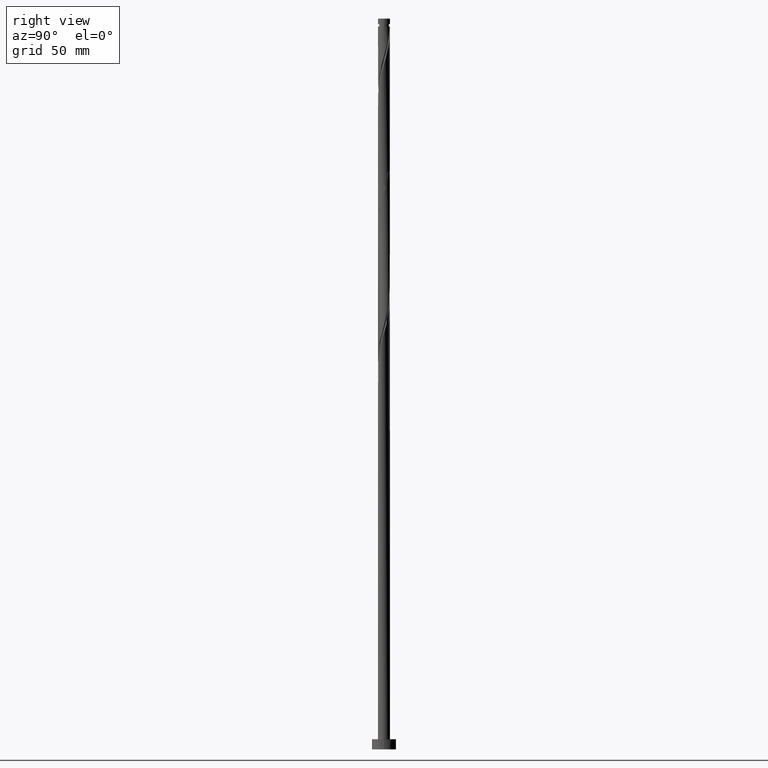
[diagram: clean part render]
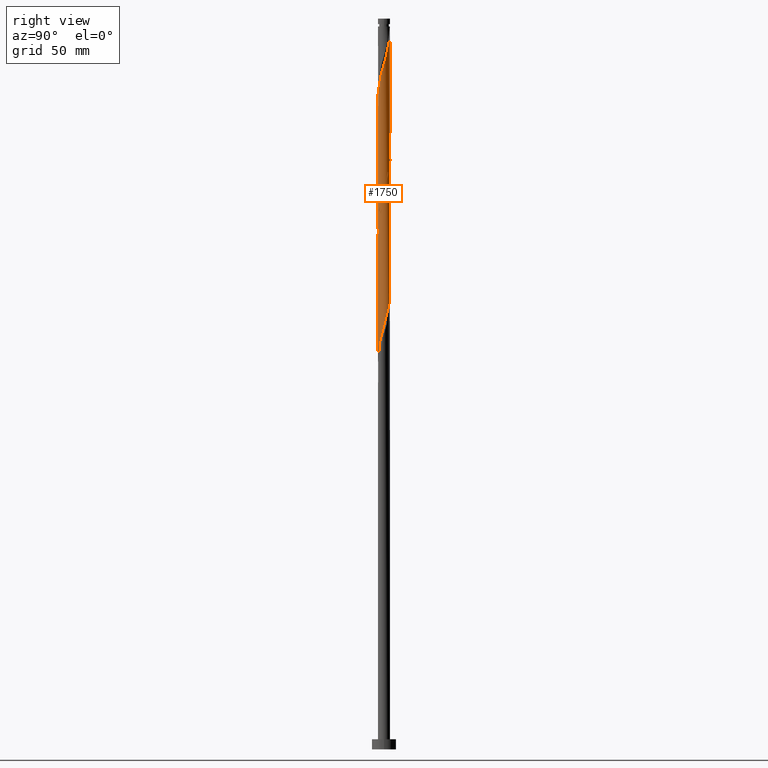
[diagram: same view with one face highlighted and labeled with its STEP entity id]
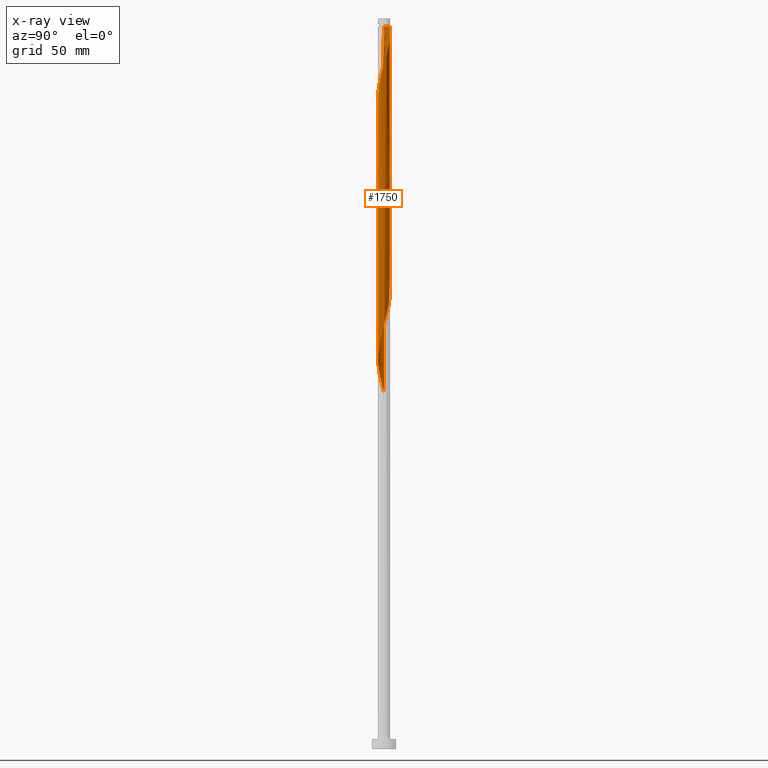
[diagram: x-ray of the same camera — body ghosted, the highlighted face saturated]
A machine part, right view. The second image highlights one B-rep face of the part: STEP entity #1750.
The next image is the same camera in x-ray: the body ghosted, the highlighted face saturated — about 0% of this face is hidden behind the body in this view.
In plain terms, the highlighted cylindrical surface (bore or boss wall) has radius 3 mm, axis along (-0, -0, -1).
Its self-contained STEP definition (entity closure, byte-faithful):
#8 = CARTESIAN_POINT ( 'NONE',  ( -0.3426132633519626269, 2.997004880578669095, 294.9778078825420380 ) ) ;
#19 = CARTESIAN_POINT ( 'NONE',  ( -3.000000000000004441, -0.1435319978602591917, 306.6942464979180158 ) ) ;
#26 = CYLINDRICAL_SURFACE ( 'NONE', #115, 3.000000000000000444 ) ;
#31 = CARTESIAN_POINT ( 'NONE',  ( -2.956194341916743351, -0.6002808636434372458, 308.3111412158754661 ) ) ;
#33 = CARTESIAN_POINT ( 'NONE',  ( 0.9059989139450660423, 2.877253563794370361, 290.5333634380976378 ) ) ;
#34 = CARTESIAN_POINT ( 'NONE',  ( 2.986297077045549475, -0.2864083930844410486, 276.0889189936531238 ) ) ;
#43 = ORIENTED_EDGE ( 'NONE', *, *, #1054, .T. ) ;
#44 = CARTESIAN_POINT ( 'NONE',  ( -3.000000000000000444, 0.000000000000000000, 362.1999999999999886 ) ) ;
#50 = EDGE_LOOP ( 'NONE', ( #56, #43, #1498, #335, #1088, #1789, #63, #853 ) ) ;
#56 = ORIENTED_EDGE ( 'NONE', *, *, #974, .F. ) ;
#61 = CARTESIAN_POINT ( 'NONE',  ( 1.484415317302709925, 2.626010904050884331, 221.6444745492086668 ) ) ;
#63 = ORIENTED_EDGE ( 'NONE', *, *, #876, .T. ) ;
#69 = CARTESIAN_POINT ( 'NONE',  ( 0.02731362638453749270, -2.999875658392148647, 260.5333634380975809 ) ) ;
#76 = CARTESIAN_POINT ( 'NONE',  ( -2.038775222402708032, -2.223244857174726530, 314.9778078825421517 ) ) ;
#78 = CARTESIAN_POINT ( 'NONE',  ( 1.785379858637176964, -2.410895841875525303, 200.5333634380976093 ) ) ;
#89 = CARTESIAN_POINT ( 'NONE',  ( -2.211065689225172104, -2.027606598413809635, 251.6444745492086952 ) ) ;
#97 = CARTESIAN_POINT ( 'NONE',  ( -2.424175730171093779, -1.795214230025621971, 250.5333634380975809 ) ) ;
#98 = CARTESIAN_POINT ( 'NONE',  ( 1.195207115623887040, -2.751632233922633564, 327.2000301047641528 ) ) ;
#105 = CARTESIAN_POINT ( 'NONE',  ( -2.584311715169901102, -1.523592123514560415, 182.7555856603198379 ) ) ;
#113 = VERTEX_POINT ( 'NONE', #1161 ) ;
#115 = AXIS2_PLACEMENT_3D ( 'NONE', #1338, #318, #1169 ) ;
#132 = CARTESIAN_POINT ( 'NONE',  ( -1.484415317302709258, -2.626010904050884331, 188.3111412158753240 ) ) ;
#146 = VECTOR ( 'NONE', #742, 1000.000000000000000 ) ;
#156 = FACE_OUTER_BOUND ( 'NONE', #50, .T. ) ;
#167 = CARTESIAN_POINT ( 'NONE',  ( -2.038775222402704035, 2.223244857174722977, 301.6444745492087236 ) ) ;
#168 = DIRECTION ( 'NONE',  ( -0.000000000000000000, -0.000000000000000000, -1.000000000000000000 ) ) ;
#193 = CARTESIAN_POINT ( 'NONE',  ( -0.3426132633519641257, -2.997004880578675756, 321.6444745492086668 ) ) ;
#195 = CARTESIAN_POINT ( 'NONE',  ( 2.944774136347767524, 0.6540087066196476062, 212.7555856603198094 ) ) ;
#203 = VECTOR ( 'NONE', #634, 1000.000000000000000 ) ;
#205 = CARTESIAN_POINT ( 'NONE',  ( -2.844610918258236865, -0.9529893618115741205, 247.2000301047642665 ) ) ;
#211 = CARTESIAN_POINT ( 'NONE',  ( -2.456461689585824892, -1.750776419202130452, 312.7555856603198663 ) ) ;
#214 = CARTESIAN_POINT ( 'NONE',  ( 2.247618455994261133, -1.987010638188426714, 202.7555856603198094 ) ) ;
#220 = CARTESIAN_POINT ( 'NONE',  ( -1.785379858637181627, -2.410895841875527967, 316.0889189936531807 ) ) ;
#224 = CARTESIAN_POINT ( 'NONE',  ( -1.245111594254570742, 2.729413328510881254, 231.6444745492086668 ) ) ;
#233 = CARTESIAN_POINT ( 'NONE',  ( 3.000000000000000888, 2.077829743472433698E-15, 277.1032511260635260 ) ) ;
#234 = CARTESIAN_POINT ( 'NONE',  ( -3.016399812174360928, -0.02746407747455717127, 243.8666967714308385 ) ) ;
#239 = CARTESIAN_POINT ( 'NONE',  ( 2.844610918258238197, 0.9529893618115727882, 280.5333634380975241 ) ) ;
#243 = CARTESIAN_POINT ( 'NONE',  ( -2.844610918258236865, -0.9529893618115741205, 180.5333634380975525 ) ) ;
#253 = CARTESIAN_POINT ( 'NONE',  ( 0.6504259784947251655, -2.928642355512052209, 196.0889189936531523 ) ) ;
#259 = CARTESIAN_POINT ( 'NONE',  ( 1.245111594254573628, 2.729413328510884806, 351.6444745492088373 ) ) ;
#275 =( BOUNDED_CURVE ( )  B_SPLINE_CURVE ( 2, ( #1057, #1343, #34, #1779, #1210, #615, #1790, #1649, #536, #381, #1554, #1411, #1819, #1828, #826, #1095, #69, #790, #652, #1668, #673, #645, #373, #965, #89, #97, #663, #680, #205, #1253, #933, #234, #802, #1372, #973, #1846, #808, #1232, #944, #1113, #1515, #1382, #224, #1262, #1242, #1122, #1525, #1105, #819, #1400, #1694, #61, #1839, #344, #1085, #1685, #1546, #528, #1677, #195, #1225, #1809, #500, #362, #506, #353, #955, #1537, #214, #1391, #78, #518, #409, #1142, #253, #1000, #1715, #1730, #569, #559, #1150, #132, #984, #418, #390, #1133, #105, #1562, #243, #1722, #1159, #1870, #720 ),
 .UNSPECIFIED., .F., .T. ) 
 B_SPLINE_CURVE_WITH_KNOTS ( ( 3, 2, 2, 2, 2, 2, 2, 2, 2, 2, 2, 2, 2, 2, 2, 2, 2, 2, 2, 2, 2, 2, 2, 2, 2, 2, 2, 2, 2, 2, 2, 2, 2, 2, 2, 2, 2, 2, 2, 2, 2, 2, 2, 2, 2, 2, 3 ),
 ( 0.5545286012773112949, 0.5583333333333333481, 0.5666666666666666519, 0.5749999999999999556, 0.5833333333333333703, 0.5916666666666666741, 0.5999999999999999778, 0.6083333333333332815, 0.6166666666666666963, 0.6250000000000000000, 0.6333333333333333037, 0.6416666666666667185, 0.6500000000000000222, 0.6583333333333333259, 0.6666666666666666297, 0.6750000000000000444, 0.6833333333333333481, 0.6916666666666666519, 0.6999999999999999556, 0.7083333333333333703, 0.7166666666666666741, 0.7249999999999999778, 0.7333333333333332815, 0.7416666666666666963, 0.7500000000000000000, 0.7583333333333333037, 0.7666666666666667185, 0.7750000000000000222, 0.7833333333333333259, 0.7916666666666666297, 0.8000000000000000444, 0.8083333333333333481, 0.8166666666666666519, 0.8249999999999999556, 0.8333333333333333703, 0.8416666666666666741, 0.8499999999999999778, 0.8583333333333332815, 0.8666666666666666963, 0.8750000000000000000, 0.8833333333333333037, 0.8916666666666667185, 0.8999999999999999112, 0.9083333333333332149, 0.9166666666666665186, 0.9250000000000000444, 0.9295286012773114059 ),
 .UNSPECIFIED. ) 
 CURVE ( )  GEOMETRIC_REPRESENTATION_ITEM ( )  RATIONAL_B_SPLINE_CURVE ( ( 0.9066196499552399146, 0.9068171577856525278, 0.9090909090909515822, 0.9041108139711998559, 0.9090909090909515822, 0.9041108139711998559, 0.9090909090909515822, 0.9041108139711998559, 0.9090909090909515822, 0.9041108139711998559, 0.9090909090909515822, 0.9041108139711998559, 0.9090909090909515822, 0.9041108139711998559, 0.9090909090909515822, 0.9041108139711998559, 0.9090909090909515822, 0.9041108139711998559, 0.9090909090909515822, 0.9041108139711998559, 0.9090909090909515822, 0.9041108139711998559, 0.9090909090909515822, 0.9041108139711998559, 0.9090909090909515822, 0.9041108139711998559, 0.9090909090909515822, 0.9041108139711998559, 0.9090909090909515822, 0.9041108139711998559, 0.9090909090909515822, 0.9041108139711998559, 0.9090909090909515822, 0.9041108139711998559, 0.9090909090909515822, 0.9041108139711998559, 0.9090909090909515822, 0.9041108139711998559, 0.9090909090909515822, 0.9041108139711998559, 0.9090909090909515822, 0.9041108139711998559, 0.9090909090909515822, 0.9041108139711998559, 0.9090909090909515822, 0.9041108139711998559, 0.9090909090909515822, 0.9041108139711998559, 0.9090909090909515822, 0.9041108139711998559, 0.9090909090909515822, 0.9041108139711998559, 0.9090909090909515822, 0.9041108139711998559, 0.9090909090909515822, 0.9041108139711998559, 0.9090909090909515822, 0.9041108139711998559, 0.9090909090909515822, 0.9041108139711998559, 0.9090909090909515822, 0.9041108139711998559, 0.9090909090909515822, 0.9041108139711998559, 0.9090909090909515822, 0.9041108139711998559, 0.9090909090909515822, 0.9041108139711998559, 0.9090909090909515822, 0.9041108139711998559, 0.9090909090909515822, 0.9041108139711998559, 0.9090909090909515822, 0.9041108139711998559, 0.9090909090909515822, 0.9041108139711998559, 0.9090909090909515822, 0.9041108139711998559, 0.9090909090909515822, 0.9041108139711998559, 0.9090909090909515822, 0.9041108139711998559, 0.9090909090909515822, 0.9041108139711998559, 0.9090909090909515822, 0.9041108139711998559, 0.9090909090909515822, 0.9041108139711998559, 0.9090909090909515822, 0.9041108139711998559, 0.9090909090909515822, 0.9063845652764987992, 0.9066196499552399146 ) ) 
 REPRESENTATION_ITEM ( '' )  );
#298 = CARTESIAN_POINT ( 'NONE',  ( 0.6504259784947302725, 2.928642355512054873, 353.8666967714308953 ) ) ;
#303 = CARTESIAN_POINT ( 'NONE',  ( 2.980586974261070221, -0.3407363920471048746, 338.3111412158754092 ) ) ;
#313 = CARTESIAN_POINT ( 'NONE',  ( -2.456461689585819119, 1.750776419202128009, 303.8666967714308953 ) ) ;
#314 = CARTESIAN_POINT ( 'NONE',  ( 3.000000000000000888, 2.077829743472434093E-15, 277.1032511260635260 ) ) ;
#318 = DIRECTION ( 'NONE',  ( -0.000000000000000000, -0.000000000000000000, -1.000000000000000000 ) ) ;
#331 = CARTESIAN_POINT ( 'NONE',  ( -2.956194341916737578, 0.6002808636434369127, 308.3111412158754092 ) ) ;
#335 = ORIENTED_EDGE ( 'NONE', *, *, #1331, .T. ) ;
#343 =( BOUNDED_CURVE ( )  B_SPLINE_CURVE ( 2, ( #904, #19, #461, #31, #1817, #953, #1665, #211, #515, #76, #220, #816, #1207, #477, #1796, #193, #488, #931, #1370, #1713, #98, #1402, #537, #985, #1162, #1760, #570, #731, #1608, #1466, #303, #752, #801, #1066, #1657, #943, #1514, #644, #1291, #860, #427, #1892, #259, #727, #298, #1309, #1747, #1867, #406 ),
 .UNSPECIFIED., .F., .T. ) 
 B_SPLINE_CURVE_WITH_KNOTS ( ( 3, 2, 2, 2, 2, 2, 2, 2, 2, 2, 2, 2, 2, 2, 2, 2, 2, 2, 2, 2, 2, 2, 2, 2, 3 ),
 ( 0.5545286012773117390, 0.5583333333333333481, 0.5666666666666666519, 0.5749999999999999556, 0.5833333333333332593, 0.5916666666666666741, 0.5999999999999999778, 0.6083333333333333925, 0.6166666666666666963, 0.6250000000000000000, 0.6333333333333333037, 0.6416666666666666075, 0.6500000000000000222, 0.6583333333333333259, 0.6666666666666667407, 0.6750000000000000444, 0.6833333333333333481, 0.6916666666666666519, 0.6999999999999999556, 0.7083333333333332593, 0.7166666666666666741, 0.7249999999999999778, 0.7333333333333333925, 0.7416666666666666963, 0.7500000000000000000 ),
 .UNSPECIFIED. ) 
 CURVE ( )  GEOMETRIC_REPRESENTATION_ITEM ( )  RATIONAL_B_SPLINE_CURVE ( ( 0.9066196499552465760, 0.9068171577856594112, 0.9090909090909582435, 0.9041108139712062952, 0.9090909090909582435, 0.9041108139712062952, 0.9090909090909582435, 0.9041108139712062952, 0.9090909090909582435, 0.9041108139712062952, 0.9090909090909582435, 0.9041108139712062952, 0.9090909090909582435, 0.9041108139712062952, 0.9090909090909582435, 0.9041108139712062952, 0.9090909090909582435, 0.9041108139712062952, 0.9090909090909582435, 0.9041108139712062952, 0.9090909090909582435, 0.9041108139712062952, 0.9090909090909582435, 0.9041108139712062952, 0.9090909090909582435, 0.9041108139712062952, 0.9090909090909582435, 0.9041108139712062952, 0.9090909090909582435, 0.9041108139712062952, 0.9090909090909582435, 0.9041108139712062952, 0.9090909090909582435, 0.9041108139712062952, 0.9090909090909582435, 0.9041108139712062952, 0.9090909090909582435, 0.9041108139712062952, 0.9090909090909582435, 0.9041108139712062952, 0.9090909090909582435, 0.9041108139712062952, 0.9090909090909582435, 0.9041108139712062952, 0.9090909090909582435, 0.9041108139712062952, 0.9090909090909582435, 0.9041108139712062952, 0.9090909090909582435 ) ) 
 REPRESENTATION_ITEM ( '' )  );
#344 = CARTESIAN_POINT ( 'NONE',  ( 1.997955648279248875, 2.259998966801996190, 219.4222523269864382 ) ) ;
#353 = CARTESIAN_POINT ( 'NONE',  ( 2.766788993523055407, -1.201790650553048012, 206.0889189936531523 ) ) ;
#362 = CARTESIAN_POINT ( 'NONE',  ( 2.956194341916737578, -0.6002808636434371348, 208.3111412158753524 ) ) ;
#373 = CARTESIAN_POINT ( 'NONE',  ( -1.741185482790979178, -2.443004935426439150, 253.8666967714309237 ) ) ;
#381 = CARTESIAN_POINT ( 'NONE',  ( 2.038775222402703147, -2.223244857174723421, 268.3111412158753524 ) ) ;
#390 = CARTESIAN_POINT ( 'NONE',  ( -2.211065689225172104, -2.027606598413809635, 184.9778078825420380 ) ) ;
#406 = CARTESIAN_POINT ( 'NONE',  ( -0.5969924622640849776, 2.940000000000873914, 358.3111412158754661 ) ) ;
#409 = CARTESIAN_POINT ( 'NONE',  ( 1.245111594254570297, -2.729413328510881254, 198.3111412158754092 ) ) ;
#418 = CARTESIAN_POINT ( 'NONE',  ( -1.997955648279248875, -2.259998966801996634, 186.0889189936530954 ) ) ;
#427 = CARTESIAN_POINT ( 'NONE',  ( 1.785379858637182071, 2.410895841875527079, 349.4222523269864951 ) ) ;
#428 =( BOUNDED_CURVE ( )  B_SPLINE_CURVE ( 2, ( #1607, #632, #1771, #331, #478, #741, #1047, #313, #1486, #167, #622, #1788, #1502, #1621, #1477, #8, #760, #447, #1036, #33, #1778, #468, #1091, #1387, #1673, #1108, #969, #1407, #239, #686, #1268, #535, #233 ),
 .UNSPECIFIED., .F., .T. ) 
 B_SPLINE_CURVE_WITH_KNOTS ( ( 3, 2, 2, 2, 2, 2, 2, 2, 2, 2, 2, 2, 2, 2, 2, 2, 3 ),
 ( 0.4295286012773115170, 0.4333333333333333481, 0.4416666666666666519, 0.4500000000000000111, 0.4583333333333333148, 0.4666666666666666741, 0.4749999999999999778, 0.4833333333333333370, 0.4916666666666666408, 0.5000000000000000000, 0.5083333333333333037, 0.5166666666666667185, 0.5250000000000000222, 0.5333333333333333259, 0.5416666666666666297, 0.5500000000000000444, 0.5545286012773112949 ),
 .UNSPECIFIED. ) 
 CURVE ( )  GEOMETRIC_REPRESENTATION_ITEM ( )  RATIONAL_B_SPLINE_CURVE ( ( 0.9066196499552400256, 0.9068171577856527499, 0.9090909090909515822, 0.9041108139711998559, 0.9090909090909515822, 0.9041108139711998559, 0.9090909090909515822, 0.9041108139711998559, 0.9090909090909515822, 0.9041108139711998559, 0.9090909090909515822, 0.9041108139711998559, 0.9090909090909515822, 0.9041108139711998559, 0.9090909090909515822, 0.9041108139711998559, 0.9090909090909515822, 0.9041108139711998559, 0.9090909090909515822, 0.9041108139711998559, 0.9090909090909515822, 0.9041108139711998559, 0.9090909090909515822, 0.9041108139711998559, 0.9090909090909515822, 0.9041108139711998559, 0.9090909090909515822, 0.9041108139711998559, 0.9090909090909515822, 0.9041108139711998559, 0.9090909090909515822, 0.9063845652764987992, 0.9066196499552399146 ) ) 
 REPRESENTATION_ITEM ( '' )  );
#447 = CARTESIAN_POINT ( 'NONE',  ( 0.2879860105828861427, 3.002746436205627756, 292.7555856603197526 ) ) ;
#461 = CARTESIAN_POINT ( 'NONE',  ( -2.986297077045553916, -0.2864083930844389947, 307.2000301047643234 ) ) ;
#468 = CARTESIAN_POINT ( 'NONE',  ( 1.484415317302709925, 2.626010904050884331, 288.3111412158752955 ) ) ;
#477 = CARTESIAN_POINT ( 'NONE',  ( -0.9582386936374928110, -2.860279830445438876, 319.4222523269866088 ) ) ;
#478 = CARTESIAN_POINT ( 'NONE',  ( -2.861491667719897158, 0.9010357570982423514, 307.2000301047642665 ) ) ;
#486 = LINE ( 'NONE', #1816, #1617 ) ;
#488 = CARTESIAN_POINT ( 'NONE',  ( -0.02731362638454002192, -2.999875658392153532, 322.7555856603198663 ) ) ;
#490 = CARTESIAN_POINT ( 'NONE',  ( 3.000000000000000444, 3.673940397442059868E-16, 362.1999999999999886 ) ) ;
#500 = CARTESIAN_POINT ( 'NONE',  ( 2.986297077045549475, -0.2864083930844410486, 209.4222523269865235 ) ) ;
#506 = CARTESIAN_POINT ( 'NONE',  ( 2.861491667719897158, -0.9010357570982442388, 207.2000301047642381 ) ) ;
#515 = CARTESIAN_POINT ( 'NONE',  ( -2.247618455994265574, -1.987010638188427381, 313.8666967714309521 ) ) ;
#518 = CARTESIAN_POINT ( 'NONE',  ( 1.531984494871650337, -2.598546826576326740, 199.4222523269864951 ) ) ;
#528 = CARTESIAN_POINT ( 'NONE',  ( 2.744447700168707094, 1.251970017003499525, 214.9778078825420096 ) ) ;
#535 = CARTESIAN_POINT ( 'NONE',  ( 3.000000000000000444, 0.1709212123393017146, 277.7088424354480480 ) ) ;
#536 = CARTESIAN_POINT ( 'NONE',  ( 2.247618455994261133, -1.987010638188426714, 269.4222523269864951 ) ) ;
#537 = CARTESIAN_POINT ( 'NONE',  ( 1.741185482790980066, -2.443004935426445812, 329.4222523269863814 ) ) ;
#544 = VERTEX_POINT ( 'NONE', #780 ) ;
#559 = CARTESIAN_POINT ( 'NONE',  ( -0.9059989139450642659, -2.877253563794370805, 190.5333634380976093 ) ) ;
#569 = CARTESIAN_POINT ( 'NONE',  ( -0.5969924622639750655, -2.939999999999999947, 191.6444745492087236 ) ) ;
#570 = CARTESIAN_POINT ( 'NONE',  ( 2.584311715169903323, -1.523592123514565300, 333.8666967714309521 ) ) ;
#574 = EDGE_CURVE ( 'NONE', #1481, #1037, #428, .T. ) ;
#596 = LINE ( 'NONE', #490, #203 ) ;
#615 = CARTESIAN_POINT ( 'NONE',  ( 2.766788993523055407, -1.201790650553048012, 272.7555856603198663 ) ) ;
#622 = CARTESIAN_POINT ( 'NONE',  ( -1.785379858637176964, 2.410895841875524415, 300.5333634380976378 ) ) ;
#632 = CARTESIAN_POINT ( 'NONE',  ( -3.000000000000000000, 0.1435319978602531132, 309.9280359338328026 ) ) ;
#634 = DIRECTION ( 'NONE',  ( -0.000000000000000000, -0.000000000000000000, -1.000000000000000000 ) ) ;
#644 = CARTESIAN_POINT ( 'NONE',  ( 2.456461689585825781, 1.750776419202128897, 346.0889189936531238 ) ) ;
#645 = CARTESIAN_POINT ( 'NONE',  ( -1.484415317302709258, -2.626010904050884331, 254.9778078825419811 ) ) ;
#652 = CARTESIAN_POINT ( 'NONE',  ( -0.5969924622639750655, -2.939999999999999947, 258.3111412158754092 ) ) ;
#663 = CARTESIAN_POINT ( 'NONE',  ( -2.584311715169901102, -1.523592123514560415, 249.4222523269864951 ) ) ;
#673 = CARTESIAN_POINT ( 'NONE',  ( -1.195207115623887706, -2.751632233922627346, 256.0889189936531807 ) ) ;
#680 = CARTESIAN_POINT ( 'NONE',  ( -2.744447700168706206, -1.251970017003500191, 248.3111412158753240 ) ) ;
#682 = VERTEX_POINT ( 'NONE', #964 ) ;
#686 = CARTESIAN_POINT ( 'NONE',  ( 2.944774136347767524, 0.6540087066196476062, 279.4222523269863814 ) ) ;
#720 = CARTESIAN_POINT ( 'NONE',  ( -3.000000000000000888, -3.363393469649623265E-15, 177.1032511260635545 ) ) ;
#727 = CARTESIAN_POINT ( 'NONE',  ( 0.9582386936374933661, 2.860279830445438876, 352.7555856603198094 ) ) ;
#731 = CARTESIAN_POINT ( 'NONE',  ( 2.744447700168711535, -1.251970017003503299, 334.9778078825420380 ) ) ;
#741 = CARTESIAN_POINT ( 'NONE',  ( -2.766788993523056295, 1.201790650553047346, 306.0889189936530101 ) ) ;
#742 = DIRECTION ( 'NONE',  ( -0.000000000000000000, -0.000000000000000000, -1.000000000000000000 ) ) ;
#752 = CARTESIAN_POINT ( 'NONE',  ( 3.016399812174366701, -0.02746407747455972478, 339.4222523269866656 ) ) ;
#760 = CARTESIAN_POINT ( 'NONE',  ( -0.02731362638453822128, 2.999875658392149536, 293.8666967714309521 ) ) ;
#761 = DIRECTION ( 'NONE',  ( -1.000000000000000000, 0.000000000000000000, 0.000000000000000000 ) ) ;
#780 = CARTESIAN_POINT ( 'NONE',  ( -3.000000000000006217, -1.420099464963164179E-15, 306.1856979723539780 ) ) ;
#790 = CARTESIAN_POINT ( 'NONE',  ( -0.2879860105828874750, -3.002746436205627756, 259.4222523269863814 ) ) ;
#797 = EDGE_CURVE ( 'NONE', #544, #682, #343, .T. ) ;
#801 = CARTESIAN_POINT ( 'NONE',  ( 2.986297077045553916, 0.2864083930844372183, 340.5333634380976946 ) ) ;
#802 = CARTESIAN_POINT ( 'NONE',  ( -2.986297077045549475, 0.2864083930844399939, 242.7555856603197810 ) ) ;
#808 = CARTESIAN_POINT ( 'NONE',  ( -2.611625341554438151, 1.476283534877586900, 238.3111412158753240 ) ) ;
#816 = CARTESIAN_POINT ( 'NONE',  ( -1.531984494871655222, -2.598546826576330293, 317.2000301047642665 ) ) ;
#819 = CARTESIAN_POINT ( 'NONE',  ( 0.5969924622639755096, 2.939999999999999947, 224.9778078825420380 ) ) ;
#826 = CARTESIAN_POINT ( 'NONE',  ( 0.6504259784947251655, -2.928642355512052209, 262.7555856603198094 ) ) ;
#836 = VERTEX_POINT ( 'NONE', #1404 ) ;
#853 = ORIENTED_EDGE ( 'NONE', *, *, #574, .F. ) ;
#860 = CARTESIAN_POINT ( 'NONE',  ( 2.038775222402708476, 2.223244857174726530, 348.3111412158754092 ) ) ;
#876 = EDGE_CURVE ( 'NONE', #113, #1037, #596, .T. ) ;
#904 = CARTESIAN_POINT ( 'NONE',  ( -3.000000000000006217, -1.420099464963164179E-15, 306.1856979723539780 ) ) ;
#931 = CARTESIAN_POINT ( 'NONE',  ( 0.2879860105828854211, -3.002746436205633973, 323.8666967714310090 ) ) ;
#933 = CARTESIAN_POINT ( 'NONE',  ( -2.980586974261064448, -0.3407363920471031538, 244.9778078825420380 ) ) ;
#943 = CARTESIAN_POINT ( 'NONE',  ( 2.766788993523063400, 1.201790650553046680, 343.8666967714311795 ) ) ;
#944 = CARTESIAN_POINT ( 'NONE',  ( -2.247618455994262021, 1.987010638188425604, 236.0889189936532091 ) ) ;
#953 = CARTESIAN_POINT ( 'NONE',  ( -2.766788993523062956, -1.201790650553047790, 310.5333634380976378 ) ) ;
#955 = CARTESIAN_POINT ( 'NONE',  ( 2.611625341554438151, -1.476283534877587567, 204.9778078825420380 ) ) ;
#962 = DIRECTION ( 'NONE',  ( -0.000000000000000000, -0.000000000000000000, -1.000000000000000000 ) ) ;
#964 = CARTESIAN_POINT ( 'NONE',  ( -0.5969924622640849776, 2.940000000000873914, 358.3111412158754661 ) ) ;
#965 = CARTESIAN_POINT ( 'NONE',  ( -1.997955648279248875, -2.259998966801996634, 252.7555856603197242 ) ) ;
#969 = CARTESIAN_POINT ( 'NONE',  ( 2.584311715169901102, 1.523592123514560415, 282.7555856603198663 ) ) ;
#973 = CARTESIAN_POINT ( 'NONE',  ( -2.861491667719897158, 0.9010357570982423514, 240.5333634380976662 ) ) ;
#974 = EDGE_CURVE ( 'NONE', #1098, #1481, #1772, .T. ) ;
#984 = CARTESIAN_POINT ( 'NONE',  ( -1.741185482790979178, -2.443004935426439150, 187.2000301047642665 ) ) ;
#985 = CARTESIAN_POINT ( 'NONE',  ( 1.997955648279250651, -2.259998966802002407, 330.5333634380976378 ) ) ;
#1000 = CARTESIAN_POINT ( 'NONE',  ( 0.3426132633519623494, -2.997004880578669095, 194.9778078825420664 ) ) ;
#1006 = CIRCLE ( 'NONE', #1097, 2.999999999999968914 ) ;
#1008 = CARTESIAN_POINT ( 'NONE',  ( -2.999999999999968914, 0.000000000000000000, 358.3111412158753524 ) ) ;
#1036 = CARTESIAN_POINT ( 'NONE',  ( 0.5969924622639755096, 2.939999999999999947, 291.6444745492086668 ) ) ;
#1037 = VERTEX_POINT ( 'NONE', #314 ) ;
#1047 = CARTESIAN_POINT ( 'NONE',  ( -2.611625341554438151, 1.476283534877586900, 304.9778078825420948 ) ) ;
#1054 = EDGE_CURVE ( 'NONE', #1098, #682, #1006, .T. ) ;
#1057 = CARTESIAN_POINT ( 'NONE',  ( 3.000000000000000888, 2.077829743472433698E-15, 277.1032511260635260 ) ) ;
#1066 = CARTESIAN_POINT ( 'NONE',  ( 2.956194341916743351, 0.6002808636434369127, 341.6444745492087236 ) ) ;
#1076 = EDGE_CURVE ( 'NONE', #1037, #836, #275, .T. ) ;
#1085 = CARTESIAN_POINT ( 'NONE',  ( 2.211065689225172548, 2.027606598413809635, 218.3111412158752955 ) ) ;
#1088 = ORIENTED_EDGE ( 'NONE', *, *, #1076, .F. ) ;
#1091 = CARTESIAN_POINT ( 'NONE',  ( 1.741185482790980288, 2.443004935426439150, 287.2000301047642665 ) ) ;
#1095 = CARTESIAN_POINT ( 'NONE',  ( 0.3426132633519623494, -2.997004880578669095, 261.6444745492086668 ) ) ;
#1097 = AXIS2_PLACEMENT_3D ( 'NONE', #1487, #168, #761 ) ;
#1098 = VERTEX_POINT ( 'NONE', #1008 ) ;
#1105 = CARTESIAN_POINT ( 'NONE',  ( 0.2879860105828861427, 3.002746436205627756, 226.0889189936530954 ) ) ;
#1108 = CARTESIAN_POINT ( 'NONE',  ( 2.424175730171094667, 1.795214230025620195, 283.8666967714310090 ) ) ;
#1113 = CARTESIAN_POINT ( 'NONE',  ( -2.038775222402704035, 2.223244857174722977, 234.9778078825419811 ) ) ;
#1122 = CARTESIAN_POINT ( 'NONE',  ( -0.3426132633519626269, 2.997004880578669095, 228.3111412158753524 ) ) ;
#1133 = CARTESIAN_POINT ( 'NONE',  ( -2.424175730171093779, -1.795214230025621971, 183.8666967714308953 ) ) ;
#1142 = CARTESIAN_POINT ( 'NONE',  ( 0.9582386936374893693, -2.860279830445434435, 197.2000301047641813 ) ) ;
#1150 = CARTESIAN_POINT ( 'NONE',  ( -1.195207115623887706, -2.751632233922627346, 189.4222523269864951 ) ) ;
#1159 = CARTESIAN_POINT ( 'NONE',  ( -2.980586974261064448, -0.3407363920471031538, 178.3111412158754092 ) ) ;
#1161 = CARTESIAN_POINT ( 'NONE',  ( 3.000000000000000444, 3.673940397442059868E-16, 358.3111412158754661 ) ) ;
#1162 = CARTESIAN_POINT ( 'NONE',  ( 2.211065689225173880, -2.027606598413813632, 331.6444745492087804 ) ) ;
#1169 = DIRECTION ( 'NONE',  ( -1.000000000000000000, 0.000000000000000000, 0.000000000000000000 ) ) ;
#1207 = CARTESIAN_POINT ( 'NONE',  ( -1.245111594254573628, -2.729413328510884806, 318.3111412158753524 ) ) ;
#1210 = CARTESIAN_POINT ( 'NONE',  ( 2.861491667719897158, -0.9010357570982442388, 273.8666967714310090 ) ) ;
#1225 = CARTESIAN_POINT ( 'NONE',  ( 2.980586974261064448, 0.3407363920471028207, 211.6444745492086668 ) ) ;
#1232 = CARTESIAN_POINT ( 'NONE',  ( -2.456461689585819119, 1.750776419202128009, 237.2000301047642381 ) ) ;
#1242 = CARTESIAN_POINT ( 'NONE',  ( -0.6504259784947262757, 2.928642355512051321, 229.4222523269864951 ) ) ;
#1253 = CARTESIAN_POINT ( 'NONE',  ( -2.944774136347767524, -0.6540087066196483834, 246.0889189936531523 ) ) ;
#1262 = CARTESIAN_POINT ( 'NONE',  ( -0.9582386936374898134, 2.860279830445434879, 230.5333634380975525 ) ) ;
#1268 = CARTESIAN_POINT ( 'NONE',  ( 2.980586974261064448, 0.3407363920471028207, 278.3111412158752955 ) ) ;
#1291 = CARTESIAN_POINT ( 'NONE',  ( 2.247618455994266906, 1.987010638188426048, 347.2000301047642665 ) ) ;
#1309 = CARTESIAN_POINT ( 'NONE',  ( 0.3426132633519646808, 2.997004880578675756, 354.9778078825421517 ) ) ;
#1331 = EDGE_CURVE ( 'NONE', #544, #836, #486, .T. ) ;
#1338 = CARTESIAN_POINT ( 'NONE',  ( 0.000000000000000000, 0.000000000000000000, 362.1999999999999886 ) ) ;
#1343 = CARTESIAN_POINT ( 'NONE',  ( 3.000000000000000888, -0.1435319978602452029, 276.5947026004994882 ) ) ;
#1370 = CARTESIAN_POINT ( 'NONE',  ( 0.5969924622639751766, -2.940000000000005276, 324.9778078825420380 ) ) ;
#1372 = CARTESIAN_POINT ( 'NONE',  ( -2.956194341916737578, 0.6002808636434369127, 241.6444745492086383 ) ) ;
#1382 = CARTESIAN_POINT ( 'NONE',  ( -1.531984494871650559, 2.598546826576327629, 232.7555856603197242 ) ) ;
#1387 = CARTESIAN_POINT ( 'NONE',  ( 1.997955648279248875, 2.259998966801996190, 286.0889189936531238 ) ) ;
#1391 = CARTESIAN_POINT ( 'NONE',  ( 2.038775222402703147, -2.223244857174723421, 201.6444745492086668 ) ) ;
#1400 = CARTESIAN_POINT ( 'NONE',  ( 0.9059989139450660423, 2.877253563794370361, 223.8666967714308669 ) ) ;
#1402 = CARTESIAN_POINT ( 'NONE',  ( 1.484415317302711257, -2.626010904050889661, 328.3111412158753524 ) ) ;
#1404 = CARTESIAN_POINT ( 'NONE',  ( -3.000000000000000888, -3.363393469649623265E-15, 177.1032511260635545 ) ) ;
#1407 = CARTESIAN_POINT ( 'NONE',  ( 2.744447700168707094, 1.251970017003499525, 281.6444745492087236 ) ) ;
#1411 = CARTESIAN_POINT ( 'NONE',  ( 1.531984494871650337, -2.598546826576326740, 266.0889189936531807 ) ) ;
#1417 = CARTESIAN_POINT ( 'NONE',  ( -3.000000000000000444, -1.435047880383839310E-15, 310.4365844593968973 ) ) ;
#1466 = CARTESIAN_POINT ( 'NONE',  ( 2.944774136347771520, -0.6540087066196529353, 337.2000301047642665 ) ) ;
#1477 = CARTESIAN_POINT ( 'NONE',  ( -0.6504259784947262757, 2.928642355512051321, 296.0889189936531238 ) ) ;
#1481 = VERTEX_POINT ( 'NONE', #1417 ) ;
#1486 = CARTESIAN_POINT ( 'NONE',  ( -2.247618455994262021, 1.987010638188425604, 302.7555856603198094 ) ) ;
#1487 = CARTESIAN_POINT ( 'NONE',  ( 0.000000000000000000, 0.000000000000000000, 358.3111412158753524 ) ) ;
#1498 = ORIENTED_EDGE ( 'NONE', *, *, #797, .F. ) ;
#1502 = CARTESIAN_POINT ( 'NONE',  ( -1.245111594254570742, 2.729413328510881254, 298.3111412158753524 ) ) ;
#1514 = CARTESIAN_POINT ( 'NONE',  ( 2.611625341554443480, 1.476283534877588899, 344.9778078825420380 ) ) ;
#1515 = CARTESIAN_POINT ( 'NONE',  ( -1.785379858637176964, 2.410895841875524415, 233.8666967714308953 ) ) ;
#1525 = CARTESIAN_POINT ( 'NONE',  ( -0.02731362638453822128, 2.999875658392149536, 227.2000301047642097 ) ) ;
#1537 = CARTESIAN_POINT ( 'NONE',  ( 2.456461689585818231, -1.750776419202129341, 203.8666967714308953 ) ) ;
#1546 = CARTESIAN_POINT ( 'NONE',  ( 2.584311715169901102, 1.523592123514560415, 216.0889189936531523 ) ) ;
#1554 = CARTESIAN_POINT ( 'NONE',  ( 1.785379858637176964, -2.410895841875525303, 267.2000301047642097 ) ) ;
#1562 = CARTESIAN_POINT ( 'NONE',  ( -2.744447700168706206, -1.251970017003500191, 181.6444745492086668 ) ) ;
#1607 = CARTESIAN_POINT ( 'NONE',  ( -3.000000000000000444, -1.435047880383839310E-15, 310.4365844593968973 ) ) ;
#1608 = CARTESIAN_POINT ( 'NONE',  ( 2.844610918258241306, -0.9529893618115781173, 336.0889189936530670 ) ) ;
#1617 = VECTOR ( 'NONE', #962, 1000.000000000000000 ) ;
#1621 = CARTESIAN_POINT ( 'NONE',  ( -0.9582386936374898134, 2.860279830445434879, 297.2000301047642665 ) ) ;
#1649 = CARTESIAN_POINT ( 'NONE',  ( 2.456461689585818231, -1.750776419202129341, 270.5333634380975241 ) ) ;
#1657 = CARTESIAN_POINT ( 'NONE',  ( 2.861491667719902487, 0.9010357570982417963, 342.7555856603197526 ) ) ;
#1665 = CARTESIAN_POINT ( 'NONE',  ( -2.611625341554443480, -1.476283534877589121, 311.6444745492086668 ) ) ;
#1668 = CARTESIAN_POINT ( 'NONE',  ( -0.9059989139450642659, -2.877253563794370805, 257.2000301047642097 ) ) ;
#1673 = CARTESIAN_POINT ( 'NONE',  ( 2.211065689225172548, 2.027606598413809635, 284.9778078825420380 ) ) ;
#1677 = CARTESIAN_POINT ( 'NONE',  ( 2.844610918258238197, 0.9529893618115727882, 213.8666967714309521 ) ) ;
#1685 = CARTESIAN_POINT ( 'NONE',  ( 2.424175730171094667, 1.795214230025620195, 217.2000301047642665 ) ) ;
#1694 = CARTESIAN_POINT ( 'NONE',  ( 1.195207115623888150, 2.751632233922627346, 222.7555856603198379 ) ) ;
#1713 = CARTESIAN_POINT ( 'NONE',  ( 0.9059989139450639328, -2.877253563794377911, 326.0889189936532944 ) ) ;
#1715 = CARTESIAN_POINT ( 'NONE',  ( 0.02731362638453749270, -2.999875658392148647, 193.8666967714309521 ) ) ;
#1722 = CARTESIAN_POINT ( 'NONE',  ( -2.944774136347767524, -0.6540087066196483834, 179.4222523269864951 ) ) ;
#1730 = CARTESIAN_POINT ( 'NONE',  ( -0.2879860105828874750, -3.002746436205627756, 192.7555856603197526 ) ) ;
#1747 = CARTESIAN_POINT ( 'NONE',  ( 0.02731362638454045214, 2.999875658392153532, 356.0889189936531238 ) ) ;
#1750 = ADVANCED_FACE ( 'NONE', ( #156 ), #26, .T. ) ;
#1760 = CARTESIAN_POINT ( 'NONE',  ( 2.424175730171096887, -1.795214230025627078, 332.7555856603199800 ) ) ;
#1771 = CARTESIAN_POINT ( 'NONE',  ( -2.986297077045549475, 0.2864083930844399939, 309.4222523269864951 ) ) ;
#1772 = LINE ( 'NONE', #44, #146 ) ;
#1778 = CARTESIAN_POINT ( 'NONE',  ( 1.195207115623888150, 2.751632233922627346, 289.4222523269865519 ) ) ;
#1779 = CARTESIAN_POINT ( 'NONE',  ( 2.956194341916737578, -0.6002808636434371348, 274.9778078825420948 ) ) ;
#1788 = CARTESIAN_POINT ( 'NONE',  ( -1.531984494871650559, 2.598546826576327629, 299.4222523269864382 ) ) ;
#1789 = ORIENTED_EDGE ( 'NONE', *, *, #876, .F. ) ;
#1790 = CARTESIAN_POINT ( 'NONE',  ( 2.611625341554438151, -1.476283534877587567, 271.6444745492087236 ) ) ;
#1796 = CARTESIAN_POINT ( 'NONE',  ( -0.6504259784947288292, -2.928642355512055762, 320.5333634380975809 ) ) ;
#1809 = CARTESIAN_POINT ( 'NONE',  ( 3.016399812174360040, 0.02746407747455536716, 210.5333634380975809 ) ) ;
#1816 = CARTESIAN_POINT ( 'NONE',  ( -3.000000000000000444, 0.000000000000000000, 362.1999999999999886 ) ) ;
#1817 = CARTESIAN_POINT ( 'NONE',  ( -2.861491667719902487, -0.9010357570982424624, 309.4222523269864382 ) ) ;
#1819 = CARTESIAN_POINT ( 'NONE',  ( 1.245111594254570297, -2.729413328510881254, 264.9778078825420380 ) ) ;
#1828 = CARTESIAN_POINT ( 'NONE',  ( 0.9582386936374893693, -2.860279830445434435, 263.8666967714308953 ) ) ;
#1839 = CARTESIAN_POINT ( 'NONE',  ( 1.741185482790980288, 2.443004935426439150, 220.5333634380976378 ) ) ;
#1846 = CARTESIAN_POINT ( 'NONE',  ( -2.766788993523056295, 1.201790650553047346, 239.4222523269863814 ) ) ;
#1867 = CARTESIAN_POINT ( 'NONE',  ( -0.2879860105828835892, 3.002746436205634861, 357.2000301047643234 ) ) ;
#1870 = CARTESIAN_POINT ( 'NONE',  ( -3.000000000000000444, -0.1709212123392986338, 177.7088424354481333 ) ) ;
#1892 = CARTESIAN_POINT ( 'NONE',  ( 1.531984494871656111, 2.598546826576329849, 350.5333634380977514 ) ) ;